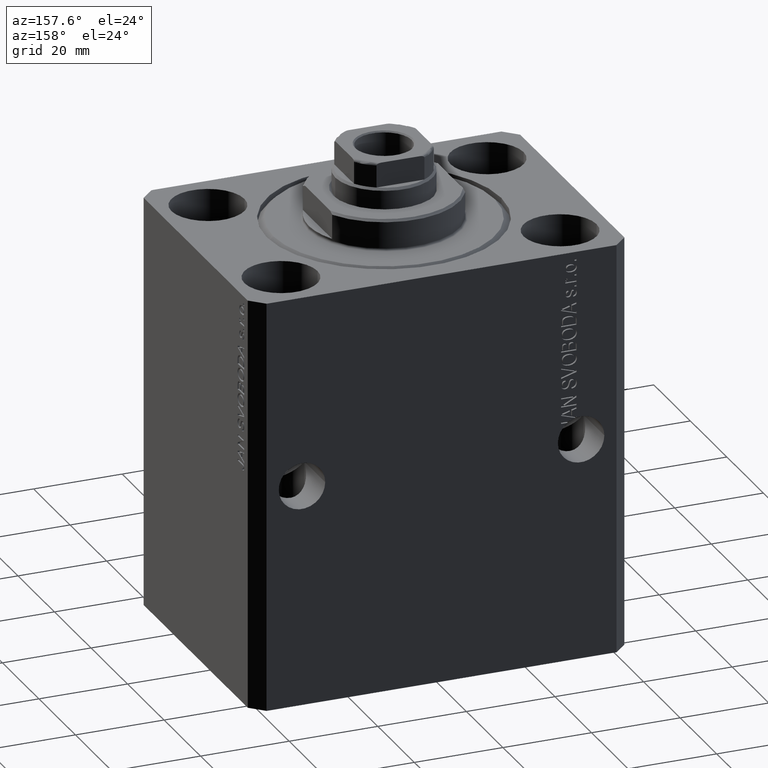
[diagram: clean part render]
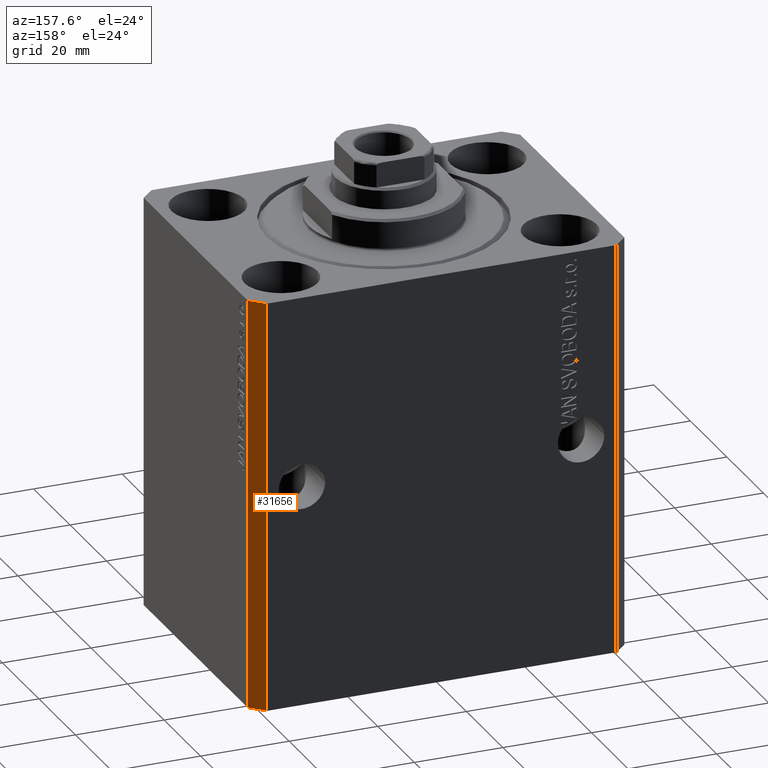
[diagram: same view with one face highlighted and labeled with its STEP entity id]
A machine part, auxiliary view. The second image highlights one B-rep face of the part: STEP entity #31656.
In plain terms, the highlighted planar face has unit normal (0.7071, 0.7071, 0).
Its self-contained STEP definition (entity closure, byte-faithful):
#478 = VERTEX_POINT ( 'NONE', #20196 ) ;
#2194 = CARTESIAN_POINT ( 'NONE',  ( 42.50000000000051870, 28.49999999999995381, 0.000000000000000000 ) ) ;
#2936 = EDGE_CURVE ( 'NONE', #23875, #22003, #21148, .T. ) ;
#3022 = AXIS2_PLACEMENT_3D ( 'NONE', #39083, #29534, #39513 ) ;
#4622 = CARTESIAN_POINT ( 'NONE',  ( 39.50000000000056843, 31.50000000000000000, -93.00000000000000000 ) ) ;
#4763 = LINE ( 'NONE', #32659, #20352 ) ;
#5318 = ORIENTED_EDGE ( 'NONE', *, *, #2936, .T. ) ;
#8313 = DIRECTION ( 'NONE',  ( -0.7071067811865356934, 0.7071067811865594521, 0.000000000000000000 ) ) ;
#10941 = DIRECTION ( 'NONE',  ( -0.7071067811865356934, 0.7071067811865594521, 0.000000000000000000 ) ) ;
#11650 = PLANE ( 'NONE',  #3022 ) ;
#14090 = EDGE_CURVE ( 'NONE', #22003, #478, #4763, .T. ) ;
#15779 = VECTOR ( 'NONE', #10941, 1000.000000000000114 ) ;
#16615 = VECTOR ( 'NONE', #27624, 1000.000000000000000 ) ;
#19142 = CARTESIAN_POINT ( 'NONE',  ( 42.50000000000051870, 28.49999999999995381, -93.00000000000000000 ) ) ;
#20196 = CARTESIAN_POINT ( 'NONE',  ( 39.50000000000056843, 31.50000000000000000, 0.000000000000000000 ) ) ;
#20352 = VECTOR ( 'NONE', #25641, 1000.000000000000000 ) ;
#21148 = LINE ( 'NONE', #27730, #15779 ) ;
#22003 = VERTEX_POINT ( 'NONE', #4622 ) ;
#23875 = VERTEX_POINT ( 'NONE', #19142 ) ;
#25641 = DIRECTION ( 'NONE',  ( 0.000000000000000000, 0.000000000000000000, 1.000000000000000000 ) ) ;
#25719 = EDGE_CURVE ( 'NONE', #23875, #27868, #31245, .T. ) ;
#27624 = DIRECTION ( 'NONE',  ( 0.000000000000000000, 0.000000000000000000, 1.000000000000000000 ) ) ;
#27730 = CARTESIAN_POINT ( 'NONE',  ( 42.50000000000051870, 28.49999999999995381, -93.00000000000000000 ) ) ;
#27849 = CARTESIAN_POINT ( 'NONE',  ( 42.50000000000051870, 28.49999999999995381, -93.00000000000000000 ) ) ;
#27868 = VERTEX_POINT ( 'NONE', #2194 ) ;
#29534 = DIRECTION ( 'NONE',  ( 0.7071067811865594521, 0.7071067811865355823, -0.000000000000000000 ) ) ;
#31245 = LINE ( 'NONE', #27849, #16615 ) ;
#31656 = ADVANCED_FACE ( 'NONE', ( #42699 ), #11650, .T. ) ;
#32659 = CARTESIAN_POINT ( 'NONE',  ( 39.50000000000056843, 31.50000000000000000, -93.00000000000000000 ) ) ;
#33435 = EDGE_CURVE ( 'NONE', #27868, #478, #42105, .T. ) ;
#33675 = ORIENTED_EDGE ( 'NONE', *, *, #33435, .F. ) ;
#33769 = ORIENTED_EDGE ( 'NONE', *, *, #25719, .F. ) ;
#34943 = VECTOR ( 'NONE', #8313, 1000.000000000000114 ) ;
#38707 = CARTESIAN_POINT ( 'NONE',  ( 42.50000000000051870, 28.49999999999995381, 0.000000000000000000 ) ) ;
#39083 = CARTESIAN_POINT ( 'NONE',  ( 42.50000000000051870, 28.49999999999995381, -93.00000000000000000 ) ) ;
#39513 = DIRECTION ( 'NONE',  ( -0.7071067811865355823, 0.7071067811865594521, 0.000000000000000000 ) ) ;
#41104 = EDGE_LOOP ( 'NONE', ( #33675, #33769, #5318, #43411 ) ) ;
#42105 = LINE ( 'NONE', #38707, #34943 ) ;
#42699 = FACE_OUTER_BOUND ( 'NONE', #41104, .T. ) ;
#43411 = ORIENTED_EDGE ( 'NONE', *, *, #14090, .T. ) ;